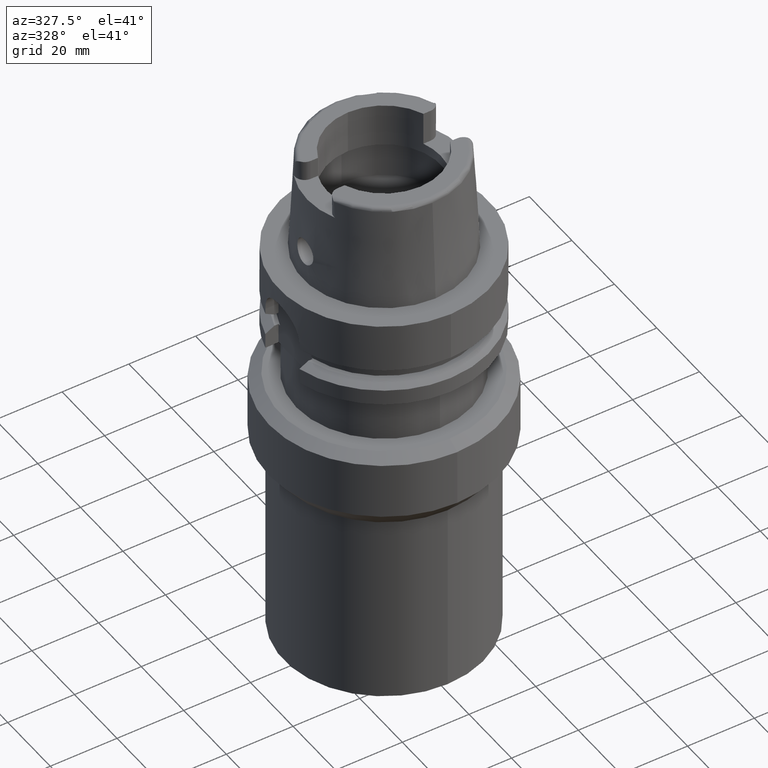
[diagram: clean part render]
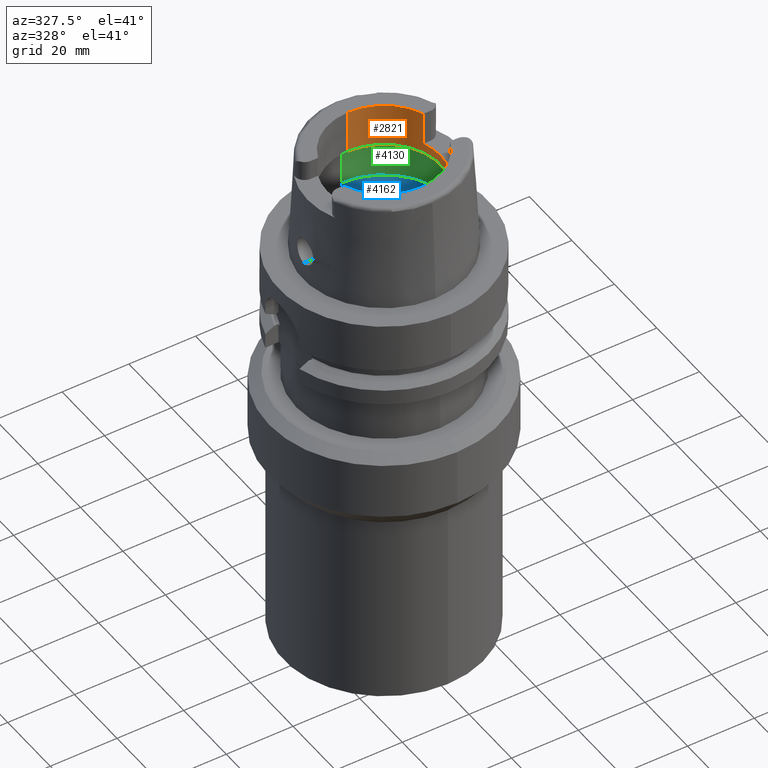
[diagram: same view with three faces highlighted in distinct colors, each labeled with its STEP entity id]
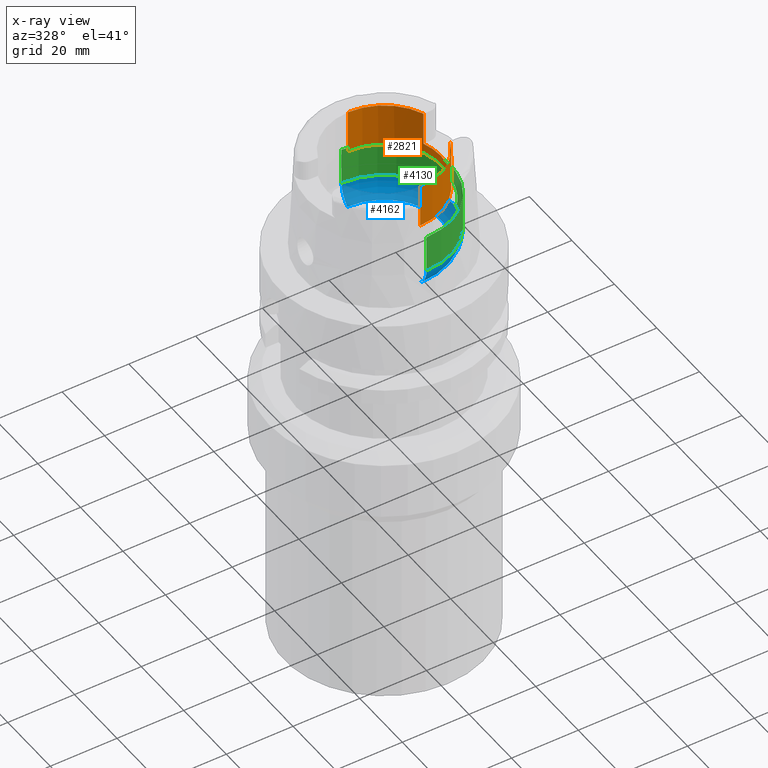
[diagram: x-ray of the same camera — body ghosted, the three highlighted faces saturated]
A machine part, auxiliary view with three faces highlighted in distinct colors.
The next image is the same camera in x-ray (body ghosted, the three faces saturated) — at least one of them is partly hidden behind the body in this view.
Their STEP definitions:

[orange] entity #2821 — the highlighted cylindrical surface (partial cylindrical patch) has radius 17 mm, axis along (0, 0, 1).
#25=DIRECTION('',(0.E0,7.376457760500E-14,1.E0));
#26=VECTOR('',#25,1.300397459622E1);
#27=CARTESIAN_POINT('',(0.E0,-1.7E1,1.899602540378E1));
#28=LINE('',#27,#26);
#122=CARTESIAN_POINT('',(0.E0,0.E0,3.2E1));
#123=DIRECTION('',(0.E0,0.E0,1.E0));
#124=DIRECTION('',(0.E0,-1.E0,0.E0));
#125=AXIS2_PLACEMENT_3D('',#122,#123,#124);
#318=DIRECTION('',(0.E0,0.E0,1.E0));
#319=VECTOR('',#318,1.E1);
#320=CARTESIAN_POINT('',(1.580149043603E1,-6.27E0,2.2E1));
#321=LINE('',#320,#319);
#325=DIRECTION('',(0.E0,-7.376457760500E-14,1.E0));
#326=VECTOR('',#325,1.300397459622E1);
#327=CARTESIAN_POINT('',(0.E0,1.7E1,1.899602540378E1));
#328=LINE('',#327,#326);
#332=DIRECTION('',(0.E0,0.E0,-1.E0));
#333=VECTOR('',#332,1.E1);
#334=CARTESIAN_POINT('',(1.580149043603E1,6.27E0,3.2E1));
#335=LINE('',#334,#333);
#339=CARTESIAN_POINT('',(0.E0,0.E0,2.2E1));
#340=DIRECTION('',(0.E0,0.E0,1.E0));
#341=DIRECTION('',(9.294994374136E-1,-3.688235294118E-1,0.E0));
#342=AXIS2_PLACEMENT_3D('',#339,#340,#341);
#430=CARTESIAN_POINT('',(0.E0,0.E0,3.2E1));
#431=DIRECTION('',(0.E0,0.E0,1.E0));
#432=DIRECTION('',(9.294994374136E-1,3.688235294118E-1,0.E0));
#433=AXIS2_PLACEMENT_3D('',#430,#431,#432);
#2233=CARTESIAN_POINT('',(0.E0,0.E0,1.899602540378E1));
#2234=DIRECTION('',(0.E0,0.E0,-1.E0));
#2235=DIRECTION('',(0.E0,1.E0,0.E0));
#2236=AXIS2_PLACEMENT_3D('',#2233,#2234,#2235);
#2285=CARTESIAN_POINT('',(0.E0,1.7E1,3.2E1));
#2286=VERTEX_POINT('',#2285);
#2287=CARTESIAN_POINT('',(0.E0,1.7E1,1.899602540378E1));
#2288=VERTEX_POINT('',#2287);
#2289=CARTESIAN_POINT('',(0.E0,-1.7E1,1.899602540378E1));
#2290=VERTEX_POINT('',#2289);
#2291=CARTESIAN_POINT('',(0.E0,-1.7E1,3.2E1));
#2292=VERTEX_POINT('',#2291);
#2317=CARTESIAN_POINT('',(1.580149043603E1,6.27E0,3.2E1));
#2318=VERTEX_POINT('',#2317);
#2321=CARTESIAN_POINT('',(1.580149043603E1,-6.27E0,3.2E1));
#2322=VERTEX_POINT('',#2321);
#2352=CARTESIAN_POINT('',(1.580149043603E1,-6.27E0,2.2E1));
#2353=CARTESIAN_POINT('',(1.580149043603E1,6.27E0,2.2E1));
#2354=VERTEX_POINT('',#2352);
#2355=VERTEX_POINT('',#2353);
#2802=CARTESIAN_POINT('',(0.E0,0.E0,-1.3285E2));
#2803=DIRECTION('',(0.E0,0.E0,1.E0));
#2804=DIRECTION('',(0.E0,1.E0,0.E0));
#2805=AXIS2_PLACEMENT_3D('',#2802,#2803,#2804);
#2806=CYLINDRICAL_SURFACE('',#2805,1.7E1);
#2808=ORIENTED_EDGE('',*,*,#2807,.F.);
#2809=ORIENTED_EDGE('',*,*,#2794,.T.);
#2810=ORIENTED_EDGE('',*,*,#2684,.F.);
#2811=ORIENTED_EDGE('',*,*,#2629,.F.);
#2813=ORIENTED_EDGE('',*,*,#2812,.F.);
#2814=ORIENTED_EDGE('',*,*,#2625,.T.);
#2816=ORIENTED_EDGE('',*,*,#2815,.F.);
#2818=ORIENTED_EDGE('',*,*,#2817,.T.);
#2819=EDGE_LOOP('',(#2808,#2809,#2810,#2811,#2813,#2814,#2816,#2818));
#2820=FACE_OUTER_BOUND('',#2819,.F.);
#126=CIRCLE('',#125,1.7E1);
#343=CIRCLE('',#342,1.7E1);
#434=CIRCLE('',#433,1.7E1);
#2237=CIRCLE('',#2236,1.7E1);
#2625=EDGE_CURVE('',#2288,#2286,#328,.T.);
#2629=EDGE_CURVE('',#2290,#2292,#28,.T.);
#2684=EDGE_CURVE('',#2292,#2322,#126,.T.);
#2794=EDGE_CURVE('',#2354,#2322,#321,.T.);
#2807=EDGE_CURVE('',#2354,#2355,#343,.T.);
#2812=EDGE_CURVE('',#2288,#2290,#2237,.T.);
#2815=EDGE_CURVE('',#2318,#2286,#434,.T.);
#2817=EDGE_CURVE('',#2318,#2355,#335,.T.);
#2821=ADVANCED_FACE('',(#2820),#2806,.F.);

[blue] entity #4162 — the highlighted toroidal blend (fillet) surface has major radius 12 mm and minor (blend) radius 8 mm.
#2059=CARTESIAN_POINT('',(0.E0,-1.2E1,6.186348233825E0));
#2060=DIRECTION('',(-1.E0,0.E0,0.E0));
#2061=DIRECTION('',(0.E0,-6.5625E-1,-7.545435292281E-1));
#2062=AXIS2_PLACEMENT_3D('',#2059,#2060,#2061);
#2121=CARTESIAN_POINT('',(1.984575864666E1,-2.479085262491E0,6.186348233825E0));
#2148=CARTESIAN_POINT('',(1.984575864666E1,2.479085262491E0,6.186348233825E0));
#2167=CARTESIAN_POINT('',(1.994501428476E1,0.E0,5.25E0));
#2168=CARTESIAN_POINT('',(1.994501428476E1,-3.022957154465E-1,5.25E0));
#2169=CARTESIAN_POINT('',(1.994018609693E1,-9.060474356403E-1,
5.323296439589E0));
#2170=CARTESIAN_POINT('',(1.991331550025E1,-1.759139202252E0,5.647061182125E0));
#2171=CARTESIAN_POINT('',(1.987369610543E1,-2.255438229266E0,5.989294685574E0));
#2172=CARTESIAN_POINT('',(1.984575864666E1,-2.479085262491E0,6.186348233825E0));
#2177=CARTESIAN_POINT('',(0.E0,0.E0,6.186348233825E0));
#2178=DIRECTION('',(0.E0,0.E0,-1.E0));
#2179=DIRECTION('',(9.922879323328E-1,-1.239542631245E-1,0.E0));
#2180=AXIS2_PLACEMENT_3D('',#2177,#2178,#2179);
#2185=CARTESIAN_POINT('',(0.E0,0.E0,1.500000000001E-1));
#2186=DIRECTION('',(0.E0,0.E0,1.E0));
#2187=DIRECTION('',(0.E0,-1.E0,0.E0));
#2188=AXIS2_PLACEMENT_3D('',#2185,#2186,#2187);
#2193=CARTESIAN_POINT('',(0.E0,1.2E1,6.186348233825E0));
#2194=DIRECTION('',(1.E0,0.E0,0.E0));
#2195=DIRECTION('',(0.E0,6.5625E-1,-7.545435292281E-1));
#2196=AXIS2_PLACEMENT_3D('',#2193,#2194,#2195);
#2201=CARTESIAN_POINT('',(0.E0,0.E0,6.186348233825E0));
#2202=DIRECTION('',(0.E0,0.E0,-1.E0));
#2203=DIRECTION('',(0.E0,1.E0,0.E0));
#2204=AXIS2_PLACEMENT_3D('',#2201,#2202,#2203);
#2209=CARTESIAN_POINT('',(1.984575864666E1,2.479085262491E0,6.186348233825E0));
#2210=CARTESIAN_POINT('',(1.987369683552E1,2.255432384732E0,5.989289536004E0));
#2211=CARTESIAN_POINT('',(1.991331633330E1,1.759123026950E0,5.647052493715E0));
#2212=CARTESIAN_POINT('',(1.994018619685E1,9.060366292763E-1,5.323294636829E0));
#2213=CARTESIAN_POINT('',(1.994501428476E1,3.022911403853E-1,5.25E0));
#2214=CARTESIAN_POINT('',(1.994501428476E1,0.E0,5.25E0));
#2370=CARTESIAN_POINT('',(0.E0,-2.E1,6.186348233825E0));
#2371=VERTEX_POINT('',#2370);
#2372=CARTESIAN_POINT('',(0.E0,2.E1,6.186348233825E0));
#2373=VERTEX_POINT('',#2372);
#2378=VERTEX_POINT('',#2121);
#2380=VERTEX_POINT('',#2167);
#2381=VERTEX_POINT('',#2148);
#2382=CARTESIAN_POINT('',(0.E0,1.725E1,1.500000000001E-1));
#2383=VERTEX_POINT('',#2382);
#2384=CARTESIAN_POINT('',(0.E0,-1.725E1,1.500000000001E-1));
#2385=VERTEX_POINT('',#2384);
#4147=CARTESIAN_POINT('',(0.E0,0.E0,6.186348233825E0));
#4148=DIRECTION('',(0.E0,0.E0,1.E0));
#4149=DIRECTION('',(0.E0,1.E0,0.E0));
#4150=AXIS2_PLACEMENT_3D('',#4147,#4148,#4149);
#4151=TOROIDAL_SURFACE('',#4150,1.2E1,8.E0);
#4152=ORIENTED_EDGE('',*,*,#4137,.T.);
#4153=ORIENTED_EDGE('',*,*,#4126,.T.);
#4154=ORIENTED_EDGE('',*,*,#4069,.F.);
#4155=ORIENTED_EDGE('',*,*,#4034,.T.);
#4156=ORIENTED_EDGE('',*,*,#4066,.T.);
#4157=ORIENTED_EDGE('',*,*,#4120,.T.);
#4159=ORIENTED_EDGE('',*,*,#4158,.T.);
#4160=EDGE_LOOP('',(#4152,#4153,#4154,#4155,#4156,#4157,#4159));
#4161=FACE_OUTER_BOUND('',#4160,.F.);
#2063=CIRCLE('',#2062,8.E0);
#2173=B_SPLINE_CURVE_WITH_KNOTS('',3,(#2167,#2168,#2169,#2170,#2171,#2172),
.UNSPECIFIED.,.F.,.F.,(4,1,1,4),(0.E0,3.333333333333E-1,6.666666666667E-1,1.E0),
.UNSPECIFIED.);
#2181=CIRCLE('',#2180,2.E1);
#2189=CIRCLE('',#2188,1.725E1);
#2197=CIRCLE('',#2196,8.E0);
#2205=CIRCLE('',#2204,2.E1);
#2215=B_SPLINE_CURVE_WITH_KNOTS('',3,(#2209,#2210,#2211,#2212,#2213,#2214),
.UNSPECIFIED.,.F.,.F.,(4,1,1,4),(0.E0,3.333333333333E-1,6.666666666667E-1,1.E0),
.UNSPECIFIED.);
#4034=EDGE_CURVE('',#2385,#2383,#2189,.T.);
#4066=EDGE_CURVE('',#2383,#2373,#2197,.T.);
#4069=EDGE_CURVE('',#2385,#2371,#2063,.T.);
#4120=EDGE_CURVE('',#2373,#2381,#2205,.T.);
#4126=EDGE_CURVE('',#2378,#2371,#2181,.T.);
#4137=EDGE_CURVE('',#2380,#2378,#2173,.T.);
#4158=EDGE_CURVE('',#2381,#2380,#2215,.T.);
#4162=ADVANCED_FACE('',(#4161),#4151,.F.);

[green] entity #4130 — the highlighted cylindrical surface (partial cylindrical patch) has radius 20 mm, axis along (0, 0, 1).
#2098=DIRECTION('',(0.E0,8.659189811028E-14,1.E0));
#2099=VECTOR('',#2098,1.107762636239E1);
#2100=CARTESIAN_POINT('',(0.E0,-2.E1,6.186348233825E0));
#2101=LINE('',#2100,#2099);
#2121=CARTESIAN_POINT('',(1.984575864666E1,-2.479085262491E0,6.186348233825E0));
#2122=CARTESIAN_POINT('',(1.981320401568E1,-2.739694027738E0,6.415968457965E0));
#2123=CARTESIAN_POINT('',(1.974857926423E1,-3.177074060827E0,6.924569889969E0));
#2124=CARTESIAN_POINT('',(1.967101806053E1,-3.616868444903E0,7.848903821374E0));
#2125=CARTESIAN_POINT('',(1.963729416657E1,-3.791121703402E0,8.841500246688E0));
#2126=CARTESIAN_POINT('',(1.965528333654E1,-3.699117853458E0,9.848194914105E0));
#2127=CARTESIAN_POINT('',(1.972078173788E1,-3.341980170967E0,1.079995622821E1));
#2128=CARTESIAN_POINT('',(1.981594475627E1,-2.738179008525E0,1.162920490097E1));
#2129=CARTESIAN_POINT('',(1.991263792575E1,-1.936635963889E0,1.226504557291E1));
#2130=CARTESIAN_POINT('',(1.998301479051E1,-9.963163827748E-1,
1.266095835533E1));
#2131=CARTESIAN_POINT('',(2.E1,-3.402028420572E-1,1.275E1));
#2132=CARTESIAN_POINT('',(2.E1,0.E0,1.275E1));
#2137=CARTESIAN_POINT('',(2.E1,0.E0,1.275E1));
#2138=CARTESIAN_POINT('',(2.E1,3.407347476119E-1,1.275E1));
#2139=CARTESIAN_POINT('',(1.998296163693E1,9.976966879328E-1,1.266068276224E1));
#2140=CARTESIAN_POINT('',(1.991244422037E1,1.938671949517E0,1.226391308503E1));
#2141=CARTESIAN_POINT('',(1.981566680812E1,2.740155048348E0,1.162718280572E1));
#2142=CARTESIAN_POINT('',(1.972054116431E1,3.343361234461E0,1.079737622250E1));
#2143=CARTESIAN_POINT('',(1.965517213639E1,3.699691977533E0,9.845546468230E0));
#2144=CARTESIAN_POINT('',(1.963732239709E1,3.790979224714E0,8.839249147493E0));
#2145=CARTESIAN_POINT('',(1.967112209980E1,3.616309673670E0,7.847362527304E0));
#2146=CARTESIAN_POINT('',(1.974866205611E1,3.176547660634E0,6.923892980047E0));
#2147=CARTESIAN_POINT('',(1.981323330996E1,2.739459519007E0,6.415761834264E0));
#2148=CARTESIAN_POINT('',(1.984575864666E1,2.479085262491E0,6.186348233825E0));
#2153=DIRECTION('',(0.E0,-8.659189811028E-14,1.E0));
#2154=VECTOR('',#2153,1.107762636239E1);
#2155=CARTESIAN_POINT('',(0.E0,2.E1,6.186348233825E0));
#2156=LINE('',#2155,#2154);
#2177=CARTESIAN_POINT('',(0.E0,0.E0,6.186348233825E0));
#2178=DIRECTION('',(0.E0,0.E0,-1.E0));
#2179=DIRECTION('',(9.922879323328E-1,-1.239542631245E-1,0.E0));
#2180=AXIS2_PLACEMENT_3D('',#2177,#2178,#2179);
#2201=CARTESIAN_POINT('',(0.E0,0.E0,6.186348233825E0));
#2202=DIRECTION('',(0.E0,0.E0,-1.E0));
#2203=DIRECTION('',(0.E0,1.E0,0.E0));
#2204=AXIS2_PLACEMENT_3D('',#2201,#2202,#2203);
#2241=CARTESIAN_POINT('',(0.E0,0.E0,1.726397459622E1));
#2242=DIRECTION('',(0.E0,0.E0,1.E0));
#2243=DIRECTION('',(0.E0,-1.E0,0.E0));
#2244=AXIS2_PLACEMENT_3D('',#2241,#2242,#2243);
#2364=CARTESIAN_POINT('',(0.E0,2.E1,1.726397459622E1));
#2365=VERTEX_POINT('',#2364);
#2366=CARTESIAN_POINT('',(0.E0,-2.E1,1.726397459622E1));
#2367=VERTEX_POINT('',#2366);
#2370=CARTESIAN_POINT('',(0.E0,-2.E1,6.186348233825E0));
#2371=VERTEX_POINT('',#2370);
#2372=CARTESIAN_POINT('',(0.E0,2.E1,6.186348233825E0));
#2373=VERTEX_POINT('',#2372);
#2378=VERTEX_POINT('',#2121);
#2379=VERTEX_POINT('',#2132);
#2381=VERTEX_POINT('',#2148);
#4111=CARTESIAN_POINT('',(0.E0,0.E0,-1.3285E2));
#4112=DIRECTION('',(0.E0,0.E0,1.E0));
#4113=DIRECTION('',(0.E0,1.E0,0.E0));
#4114=AXIS2_PLACEMENT_3D('',#4111,#4112,#4113);
#4115=CYLINDRICAL_SURFACE('',#4114,2.E1);
#4117=ORIENTED_EDGE('',*,*,#4116,.T.);
#4119=ORIENTED_EDGE('',*,*,#4118,.T.);
#4121=ORIENTED_EDGE('',*,*,#4120,.F.);
#4122=ORIENTED_EDGE('',*,*,#4103,.T.);
#4124=ORIENTED_EDGE('',*,*,#4123,.F.);
#4125=ORIENTED_EDGE('',*,*,#4099,.F.);
#4127=ORIENTED_EDGE('',*,*,#4126,.F.);
#4128=EDGE_LOOP('',(#4117,#4119,#4121,#4122,#4124,#4125,#4127));
#4129=FACE_OUTER_BOUND('',#4128,.F.);
#2133=B_SPLINE_CURVE_WITH_KNOTS('',3,(#2121,#2122,#2123,#2124,#2125,#2126,#2127,
#2128,#2129,#2130,#2131,#2132),.UNSPECIFIED.,.F.,.F.,(4,1,1,1,1,1,1,1,1,4),
(0.E0,1.111111111111E-1,2.222222222222E-1,3.333333333333E-1,4.444444444444E-1,
5.555555555556E-1,6.666666666667E-1,7.777777777778E-1,8.888888888889E-1,1.E0),
.UNSPECIFIED.);
#2149=B_SPLINE_CURVE_WITH_KNOTS('',3,(#2137,#2138,#2139,#2140,#2141,#2142,#2143,
#2144,#2145,#2146,#2147,#2148),.UNSPECIFIED.,.F.,.F.,(4,1,1,1,1,1,1,1,1,4),
(0.E0,1.111111111111E-1,2.222222222222E-1,3.333333333333E-1,4.444444444444E-1,
5.555555555556E-1,6.666666666667E-1,7.777777777778E-1,8.888888888889E-1,1.E0),
.UNSPECIFIED.);
#2181=CIRCLE('',#2180,2.E1);
#2205=CIRCLE('',#2204,2.E1);
#2245=CIRCLE('',#2244,2.E1);
#4099=EDGE_CURVE('',#2371,#2367,#2101,.T.);
#4103=EDGE_CURVE('',#2373,#2365,#2156,.T.);
#4116=EDGE_CURVE('',#2378,#2379,#2133,.T.);
#4118=EDGE_CURVE('',#2379,#2381,#2149,.T.);
#4120=EDGE_CURVE('',#2373,#2381,#2205,.T.);
#4123=EDGE_CURVE('',#2367,#2365,#2245,.T.);
#4126=EDGE_CURVE('',#2378,#2371,#2181,.T.);
#4130=ADVANCED_FACE('',(#4129),#4115,.F.);